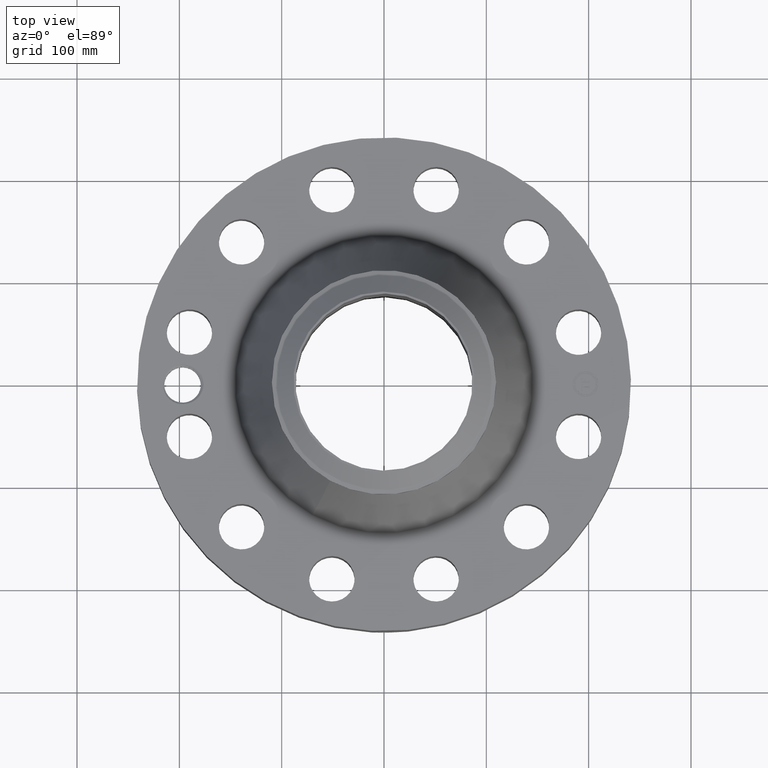
[diagram: clean part render]
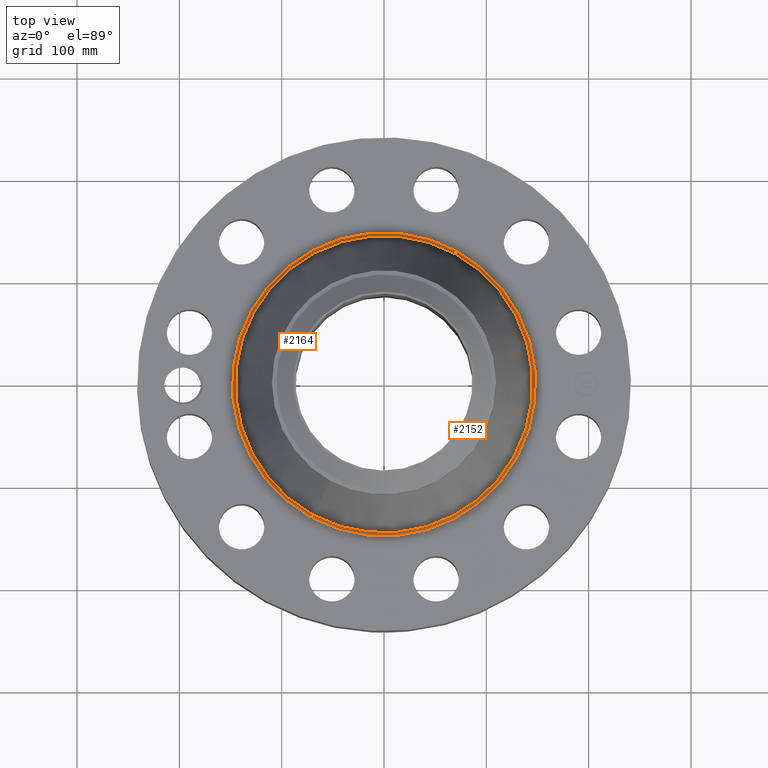
[diagram: same view with one multi-face feature highlighted, each face labeled with its STEP entity id]
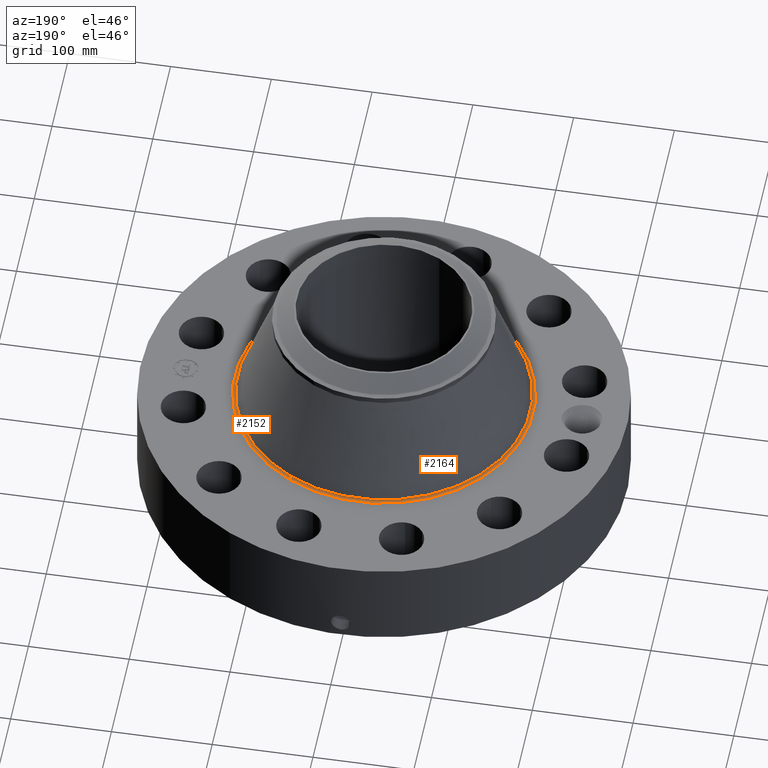
[diagram: same view with one multi-face feature highlighted, each face labeled with its STEP entity id]
A machine part, top view. The highlighted faces form ONE feature: a constant-radius fillet chain: 2 tangent blend faces with common blend radius 3.048 mm. The faces share edges in the B-rep.
A second angle (auxiliary view) of the same feature is appended — it is thin or edge-on in the first view.
Their STEP definitions:
[1] entity #2152 (Torus):
#672=AXIS2_PLACEMENT_3D('Circle Axis2P3D',#670,#671,$) ;
#2125=AXIS2_PLACEMENT_3D('Torus Axis2P3D',#2122,#2123,#2124) ;
#2129=AXIS2_PLACEMENT_3D('Circle Axis2P3D',#2127,#2128,$) ;
#2136=AXIS2_PLACEMENT_3D('Circle Axis2P3D',#2134,#2135,$) ;
#2143=AXIS2_PLACEMENT_3D('Circle Axis2P3D',#2141,#2142,$) ;
#665=CARTESIAN_POINT('Vertex',(-2.7971167848,-5.12008793076,3.87000000002)) ;
#667=CARTESIAN_POINT('Vertex',(2.7971167848,5.12008793076,3.87000000002)) ;
#670=CARTESIAN_POINT('Axis2P3D Location',(0.,0.,3.87000000002)) ;
#2122=CARTESIAN_POINT('Axis2P3D Location',(0.,0.,3.99000000002)) ;
#2127=CARTESIAN_POINT('Axis2P3D Location',(2.7971167848,5.12008793076,3.99000000002)) ;
#2131=CARTESIAN_POINT('Vertex',(2.74299307033,5.02101513597,3.94931579098)) ;
#2134=CARTESIAN_POINT('Axis2P3D Location',(0.,0.,3.94931579098)) ;
#2138=CARTESIAN_POINT('Vertex',(-2.74299307033,-5.02101513597,3.94931579098)) ;
#2141=CARTESIAN_POINT('Axis2P3D Location',(-2.7971167848,-5.12008793076,3.99000000002)) ;
#671=DIRECTION('Axis2P3D Direction',(0.,0.,-0.0393700787402)) ;
#2123=DIRECTION('Axis2P3D Direction',(0.,0.,-0.0393700787402)) ;
#2124=DIRECTION('Axis2P3D XDirection',(-0.0188750212049,-0.0345504945626,0.)) ;
#2128=DIRECTION('Axis2P3D Direction',(-0.0345504945626,0.0188750212049,0.)) ;
#2135=DIRECTION('Axis2P3D Direction',(0.,0.,-0.0393700787402)) ;
#2142=DIRECTION('Axis2P3D Direction',(0.0345504945626,-0.0188750212049,0.)) ;
#2147=ORIENTED_EDGE('',*,*,#674,.F.) ;
#2148=ORIENTED_EDGE('',*,*,#2133,.T.) ;
#2149=ORIENTED_EDGE('',*,*,#2140,.T.) ;
#2150=ORIENTED_EDGE('',*,*,#2145,.F.) ;
#2152=ADVANCED_FACE('PartBody',(#2151),#2126,.F.) ;
#673=CIRCLE('generated circle',#672,5.83430910447) ;
#2130=CIRCLE('generated circle',#2129,0.12) ;
#2137=CIRCLE('generated circle',#2136,5.72141625645) ;
#2144=CIRCLE('generated circle',#2143,0.12) ;
#2126=TOROIDAL_SURFACE('homeo Torus',#2125,5.83430910447,0.12) ;
#674=EDGE_CURVE('',#668,#666,#673,.T.) ;
#2133=EDGE_CURVE('',#668,#2132,#2130,.T.) ;
#2140=EDGE_CURVE('',#2132,#2139,#2137,.T.) ;
#2145=EDGE_CURVE('',#666,#2139,#2144,.T.) ;
#2146=EDGE_LOOP('',(#2147,#2148,#2149,#2150)) ;
#2151=FACE_OUTER_BOUND('',#2146,.T.) ;
#666=VERTEX_POINT('',#665) ;
#668=VERTEX_POINT('',#667) ;
#2132=VERTEX_POINT('',#2131) ;
#2139=VERTEX_POINT('',#2138) ;
[2] entity #2164 (Torus):
#663=AXIS2_PLACEMENT_3D('Circle Axis2P3D',#661,#662,$) ;
#2125=AXIS2_PLACEMENT_3D('Torus Axis2P3D',#2122,#2123,#2124) ;
#2129=AXIS2_PLACEMENT_3D('Circle Axis2P3D',#2127,#2128,$) ;
#2143=AXIS2_PLACEMENT_3D('Circle Axis2P3D',#2141,#2142,$) ;
#2155=AXIS2_PLACEMENT_3D('Circle Axis2P3D',#2153,#2154,$) ;
#661=CARTESIAN_POINT('Axis2P3D Location',(0.,0.,3.87000000002)) ;
#665=CARTESIAN_POINT('Vertex',(-2.7971167848,-5.12008793076,3.87000000002)) ;
#667=CARTESIAN_POINT('Vertex',(2.7971167848,5.12008793076,3.87000000002)) ;
#2122=CARTESIAN_POINT('Axis2P3D Location',(0.,0.,3.99000000002)) ;
#2127=CARTESIAN_POINT('Axis2P3D Location',(2.7971167848,5.12008793076,3.99000000002)) ;
#2131=CARTESIAN_POINT('Vertex',(2.74299307033,5.02101513597,3.94931579098)) ;
#2138=CARTESIAN_POINT('Vertex',(-2.74299307033,-5.02101513597,3.94931579098)) ;
#2141=CARTESIAN_POINT('Axis2P3D Location',(-2.7971167848,-5.12008793076,3.99000000002)) ;
#2153=CARTESIAN_POINT('Axis2P3D Location',(0.,0.,3.94931579098)) ;
#662=DIRECTION('Axis2P3D Direction',(0.,0.,-0.0393700787402)) ;
#2123=DIRECTION('Axis2P3D Direction',(0.,0.,-0.0393700787402)) ;
#2124=DIRECTION('Axis2P3D XDirection',(-0.0188750212049,-0.0345504945626,0.)) ;
#2128=DIRECTION('Axis2P3D Direction',(-0.0345504945626,0.0188750212049,0.)) ;
#2142=DIRECTION('Axis2P3D Direction',(0.0345504945626,-0.0188750212049,0.)) ;
#2154=DIRECTION('Axis2P3D Direction',(0.,0.,-0.0393700787402)) ;
#2159=ORIENTED_EDGE('',*,*,#669,.F.) ;
#2160=ORIENTED_EDGE('',*,*,#2145,.T.) ;
#2161=ORIENTED_EDGE('',*,*,#2157,.T.) ;
#2162=ORIENTED_EDGE('',*,*,#2133,.F.) ;
#2164=ADVANCED_FACE('PartBody',(#2163),#2126,.F.) ;
#664=CIRCLE('generated circle',#663,5.83430910447) ;
#2130=CIRCLE('generated circle',#2129,0.12) ;
#2144=CIRCLE('generated circle',#2143,0.12) ;
#2156=CIRCLE('generated circle',#2155,5.72141625645) ;
#2126=TOROIDAL_SURFACE('homeo Torus',#2125,5.83430910447,0.12) ;
#669=EDGE_CURVE('',#666,#668,#664,.T.) ;
#2133=EDGE_CURVE('',#668,#2132,#2130,.T.) ;
#2145=EDGE_CURVE('',#666,#2139,#2144,.T.) ;
#2157=EDGE_CURVE('',#2139,#2132,#2156,.T.) ;
#2158=EDGE_LOOP('',(#2159,#2160,#2161,#2162)) ;
#2163=FACE_OUTER_BOUND('',#2158,.T.) ;
#666=VERTEX_POINT('',#665) ;
#668=VERTEX_POINT('',#667) ;
#2132=VERTEX_POINT('',#2131) ;
#2139=VERTEX_POINT('',#2138) ;